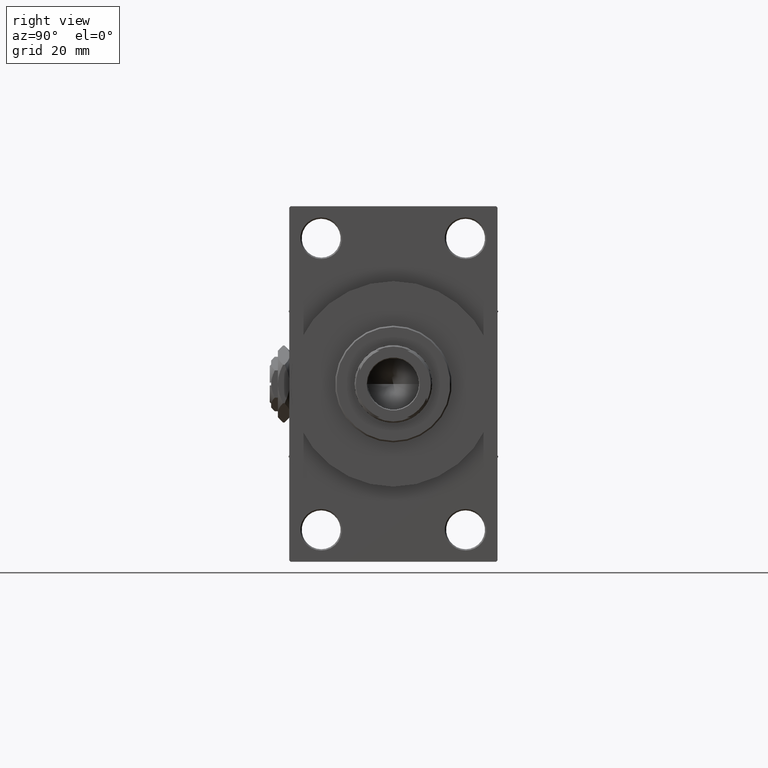
[diagram: clean part render]
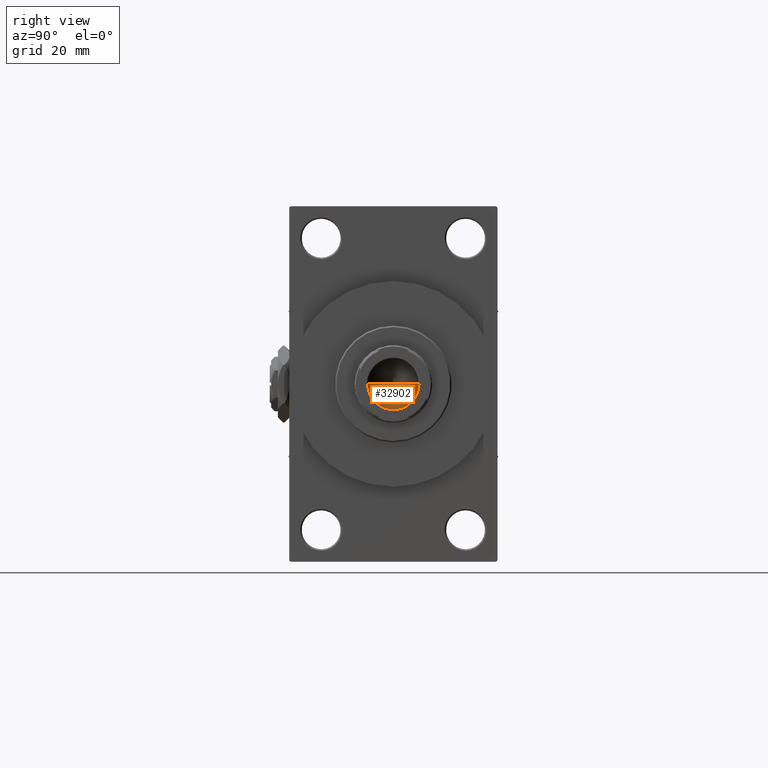
[diagram: same view with one face highlighted and labeled with its STEP entity id]
A machine part, right view. The second image highlights one B-rep face of the part: STEP entity #32902.
In plain terms, the highlighted conical surface has half-angle 59 deg.
Its self-contained STEP definition (entity closure, byte-faithful):
#2965 = LINE ( 'NONE', #36856, #12519 ) ;
#3399 = DIRECTION ( 'NONE',  ( 0.8571673007021117785, 0.000000000000000000, 0.5150380749100550437 ) ) ;
#7194 = ORIENTED_EDGE ( 'NONE', *, *, #35921, .T. ) ;
#7621 = LINE ( 'NONE', #19078, #8460 ) ;
#8460 = VECTOR ( 'NONE', #3399, 1000.000000000000000 ) ;
#10088 = AXIS2_PLACEMENT_3D ( 'NONE', #29933, #22438, #41149 ) ;
#11319 = CARTESIAN_POINT ( 'NONE',  ( 0.000000000000000000, 0.000000000000000000, 127.0000000000000000 ) ) ;
#11348 = VERTEX_POINT ( 'NONE', #36249 ) ;
#11556 = FACE_OUTER_BOUND ( 'NONE', #46365, .T. ) ;
#12519 = VECTOR ( 'NONE', #43851, 1000.000000000000000 ) ;
#17239 = CONICAL_SURFACE ( 'NONE', #23600, 9.249999999999992895, 1.029744258676653423 ) ;
#19078 = CARTESIAN_POINT ( 'NONE',  ( 9.249999999999992895, 0.000000000000000000, 127.0000000000000000 ) ) ;
#20478 = CARTESIAN_POINT ( 'NONE',  ( -9.249999999999992895, 1.132798289211300712E-15, 127.0000000000000000 ) ) ;
#22044 = VERTEX_POINT ( 'NONE', #33529 ) ;
#22438 = DIRECTION ( 'NONE',  ( -0.000000000000000000, -0.000000000000000000, 1.000000000000000000 ) ) ;
#23600 = AXIS2_PLACEMENT_3D ( 'NONE', #11319, #41475, #30503 ) ;
#29933 = CARTESIAN_POINT ( 'NONE',  ( 0.000000000000000000, 0.000000000000000000, 127.0000000000000000 ) ) ;
#30503 = DIRECTION ( 'NONE',  ( 1.000000000000000000, 0.000000000000000000, 0.000000000000000000 ) ) ;
#31973 = VERTEX_POINT ( 'NONE', #20478 ) ;
#32608 = EDGE_CURVE ( 'NONE', #22044, #11348, #7621, .T. ) ;
#32902 = ADVANCED_FACE ( 'NONE', ( #11556 ), #17239, .F. ) ;
#33529 = CARTESIAN_POINT ( 'NONE',  ( -9.769621978240258809E-15, 0.000000000000000000, 121.4420392739950643 ) ) ;
#35485 = ORIENTED_EDGE ( 'NONE', *, *, #32608, .T. ) ;
#35921 = EDGE_CURVE ( 'NONE', #11348, #31973, #39517, .T. ) ;
#36249 = CARTESIAN_POINT ( 'NONE',  ( 9.249999999999992895, 0.000000000000000000, 127.0000000000000000 ) ) ;
#36856 = CARTESIAN_POINT ( 'NONE',  ( -9.249999999999992895, 1.132798289211300712E-15, 127.0000000000000000 ) ) ;
#37051 = EDGE_CURVE ( 'NONE', #22044, #31973, #2965, .T. ) ;
#39517 = CIRCLE ( 'NONE', #10088, 9.249999999999992895 ) ;
#41149 = DIRECTION ( 'NONE',  ( 1.000000000000000000, 0.000000000000000000, 0.000000000000000000 ) ) ;
#41475 = DIRECTION ( 'NONE',  ( -0.000000000000000000, -0.000000000000000000, 1.000000000000000000 ) ) ;
#43851 = DIRECTION ( 'NONE',  ( -0.8571673007021117785, 1.049727191138617956E-16, 0.5150380749100550437 ) ) ;
#46365 = EDGE_LOOP ( 'NONE', ( #48338, #35485, #7194 ) ) ;
#48338 = ORIENTED_EDGE ( 'NONE', *, *, #37051, .F. ) ;